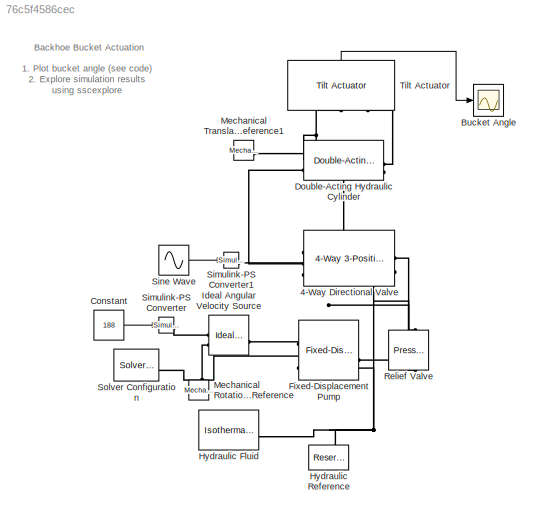
MODEL slx_76c5f4586cec
KIND model
CONFIG EnableMultiTasking = on
CONFIG MaxStep = 1e-2
CONFIG SolverName = ode15s
WORKSPACE source: mxarray member
WORKSPACE cylinderGray = [0.6 0.6 0.6]
WORKSPACE darkOrange = [0.8 0.5 0]
WORKSPACE glassBlue = [0.2 0.2 1]
WORKSPACE gray = [0.3 0.3 0.3]
WORKSPACE orange = [0.8 0.65 0]
WORKSPACE pistonGray = [0.4 0.4 0.4]
WORKSPACE rhoGlass = 2500
WORKSPACE rhoRubber = 1500
WORKSPACE rhoSteel = 7800
WORKSPACE tireBlack = [0.1 0.1 0.1]
WORKSPACE wheelGray = [0.6 0.6 0.6]
WORKSPACE yellow = [0.8 0.8 0]
BLOCK [Reference] 4-Way Directional Valve  REF=SimscapeFluids_lib/Isothermal Liquid/Valves & Orifices/Directional Control
Valves/4-Way 3-Position
Directional Valve
(IL)
  LibrarySourceBlock = sh_lib/Valves/Directional Valves/4-Way Directional\nValve
  NameLocation = right
  SourceBlock = SimscapeFluids_lib/Isothermal Liquid/Valves & Orifices/Directional Control\nValves/4-Way 3-Position\nDirectional Valve\n(IL)
  SourceType = 4-Way 3-Position\nDirectional Valve\n(IL)
BLOCK [Scope] Bucket Angle
  ActiveDisplayYMaximum = 0
  ActiveDisplayYMinimum = -80
  DataLoggingDecimation = 1
  DataLoggingLimitDataPoints = on
  DataLoggingSaveFormat = Structure With Time
  Floating = off
  GraphicalSettings = {"GraphicalSettings":{"LegacySettings":true,"Style":{"AxesScalingProperties":{"ScaleAxesLimitsAtStop":false},"Style":{"AxesColor":"[0 0 0]","BackgroundColor":"[0.501960784313725 0.501960784313725 0.501960784313725]","ChannelNames":[""],"ColorOrder":"[1 0.909803921568627 0.392156862745098;0.149019607843137 0.549019607843137 0.866666666666667;0.96078431372549 0.466666666666667 0.16078431372549;0.286...<+671ch>
  MultipleDisplayCache = [{"MaxYLimMag":10,"MaxYLimReal":0,"MinYLimMag":0,"MinYLimReal":-80,"PlotAsMagnitudePhase":false,"ShowGrid":true,"ShowLegend":false,"Title":"%<SignalLabel>","YLabel":""}]
  NumInputPorts = 1
  TimeSpan = 10
  WasSavedAsWebScope = on
BLOCK [Constant] Constant
  Value = 188
BLOCK [Reference] Double-Acting Hydraulic Cylinder  REF=SimscapeFluids_lib/Isothermal Liquid/Actuators/Double-Acting
Actuator (IL)
  LibrarySourceBlock = sh_lib/Hydraulic Cylinders/Double-Acting\nHydraulic Cylinder
  SourceBlock = SimscapeFluids_lib/Isothermal Liquid/Actuators/Double-Acting\nActuator (IL)
  SourceType = Double-Acting\nActuator (IL)
BLOCK [Reference] Fixed-Displacement Pump  REF=SimscapeFluids_lib/Isothermal Liquid/Pumps & Motors/Fixed-Displacement
Pump (IL)
  LibrarySourceBlock = sh_lib/Pumps and Motors/Fixed-Displacement\nPump
  SourceBlock = SimscapeFluids_lib/Isothermal Liquid/Pumps & Motors/Fixed-Displacement\nPump (IL)
  SourceType = Fixed-Displacement\nPump (IL)
BLOCK [Reference] Hydraulic Fluid  REF=fl_lib/Isothermal Liquid/Utilities/Isothermal Liquid
Properties (IL)
  LibrarySourceBlock = sh_lib/Hydraulic Utilities/Hydraulic Fluid
  SourceBlock = fl_lib/Isothermal Liquid/Utilities/Isothermal Liquid\nProperties (IL)
  SourceType = Isothermal Liquid\nProperties (IL)
BLOCK [Reference] Hydraulic Reference  REF=fl_lib/Isothermal Liquid/Elements/Reservoir (IL)
  LibrarySourceBlock = fl_lib/Hydraulic/Hydraulic Elements/Hydraulic Reference
  NameLocation = right
  SourceBlock = fl_lib/Isothermal Liquid/Elements/Reservoir (IL)
  SourceType = Reservoir (IL)
BLOCK [Reference] Ideal Angular Velocity Source  REF=fl_lib/Mechanical/Mechanical Sources/Ideal Angular
Velocity Source
  NameLocation = top
  SourceBlock = fl_lib/Mechanical/Mechanical Sources/Ideal Angular\nVelocity Source
  SourceType = Ideal Angular\nVelocity Source
BLOCK [Reference] Mechanical Rotational Reference  REF=fl_lib/Mechanical/Rotational Elements/Mechanical
Rotational Reference
  NameLocation = right
  SourceBlock = fl_lib/Mechanical/Rotational Elements/Mechanical\nRotational Reference
  SourceType = Mechanical\nRotational Reference
BLOCK [Reference] Mechanical Translational Reference1  REF=fl_lib/Mechanical/Translational
Elements/Mechanical
Translational
Reference
  SourceBlock = fl_lib/Mechanical/Translational\nElements/Mechanical\nTranslational\nReference
  SourceType = Mechanical\nTranslational\nReference
  Tag = Factory Generic
BLOCK [Reference] Relief Valve  REF=SimscapeFluids_lib/Isothermal Liquid/Valves & Orifices/Pressure Control
Valves/Pressure Relief
Valve (IL)
  LibrarySourceBlock = sh_lib/Valves/Pressure Control\nValves/Pressure Relief\nValve
  NameLocation = right
  SourceBlock = SimscapeFluids_lib/Isothermal Liquid/Valves & Orifices/Pressure Control\nValves/Pressure Relief\nValve (IL)
  SourceType = Pressure Relief\nValve (IL)
BLOCK [Reference] Simulink-PS Converter  REF=nesl_utility/Simulink-PS
Converter
  SourceBlock = nesl_utility/Simulink-PS\nConverter
  SourceType = Simulink-PS\nConverter
BLOCK [Reference] Simulink-PS Converter1  REF=nesl_utility/Simulink-PS
Converter
  SourceBlock = nesl_utility/Simulink-PS\nConverter
  SourceType = Simulink-PS\nConverter
BLOCK [Sin] Sine Wave
  Amplitude = 3e-3
  SampleTime = 0
BLOCK [Reference] Solver Configuration  REF=nesl_utility/Solver
Configuration
  SourceBlock = nesl_utility/Solver\nConfiguration
  SourceType = Solver\nConfiguration
BLOCK [Reference] Tilt Actuator  REF=Tilt_Actuator_Lib/Tilt
Actuator
  NameLocation = right
  SourceBlock = Tilt_Actuator_Lib/Tilt\nActuator
ANNOTATION (root): 1. Plot bucket angle ( see code ) 2. Explore simulation results using sscexplore
ANNOTATION (root): Backhoe Bucket Actuation
LINE Constant:1 -> Simulink-PS Converter:1
LINE Sine Wave:1 -> Simulink-PS Converter1:1
LINE Tilt Actuator:1 -> Bucket Angle:1
PLINE 4-Way Directional Valve:LConn1 -- Simulink-PS Converter1:RConn1
PLINE 4-Way Directional Valve:LConn2 -- Double-Acting Hydraulic Cylinder:LConn2
PLINE 4-Way Directional Valve:LConn3 -- Double-Acting Hydraulic Cylinder:RConn3
PNET net1: 4-Way Directional Valve:RConn1 -- Fixed-Displacement Pump:LConn1 -- Relief Valve:LConn1
PNET net2: 4-Way Directional Valve:RConn2 -- Fixed-Displacement Pump:RConn3 -- Hydraulic Fluid:RConn1 -- Hydraulic Reference:LConn1 -- Relief Valve:RConn1
PNET net3: Double-Acting Hydraulic Cylinder:LConn1 -- Mechanical Translational Reference1:LConn1 -- Tilt Actuator:LConn1
PLINE Double-Acting Hydraulic Cylinder:RConn2 -- Tilt Actuator:LConn2
PLINE Fixed-Displacement Pump:RConn1 -- Ideal Angular Velocity Source:LConn1
PNET net4: Fixed-Displacement Pump:RConn2 -- Ideal Angular Velocity Source:RConn2 -- Mechanical Rotational Reference:LConn1 -- Solver Configuration:RConn1
PLINE Ideal Angular Velocity Source:RConn1 -- Simulink-PS Converter:RConn1
note: PNET lines group multi-terminal physical nets as a canonical sorted terminal list (undirected conserving connections); 2-terminal nets keep the pairwise PLINE form
